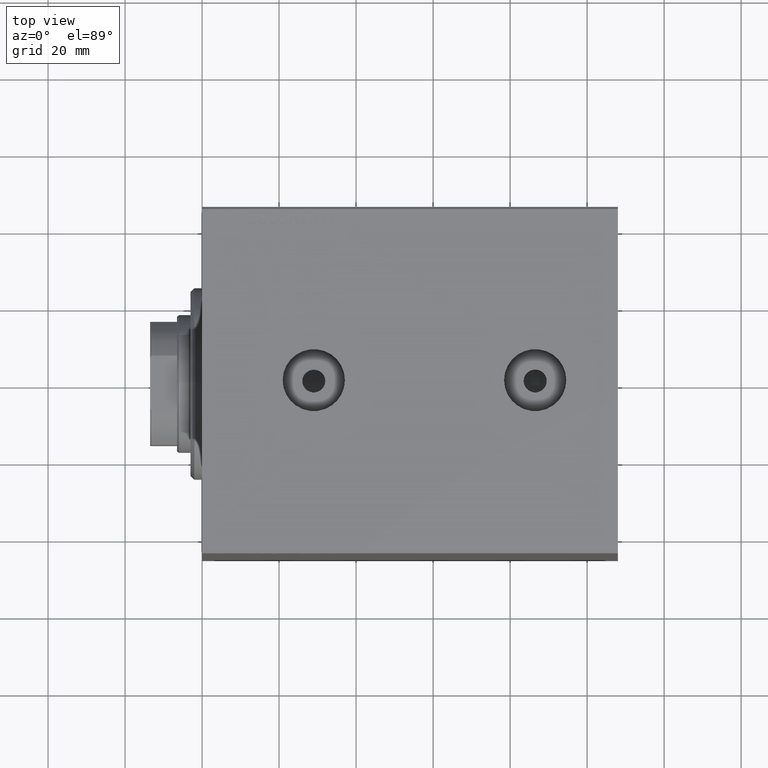
[diagram: clean part render]
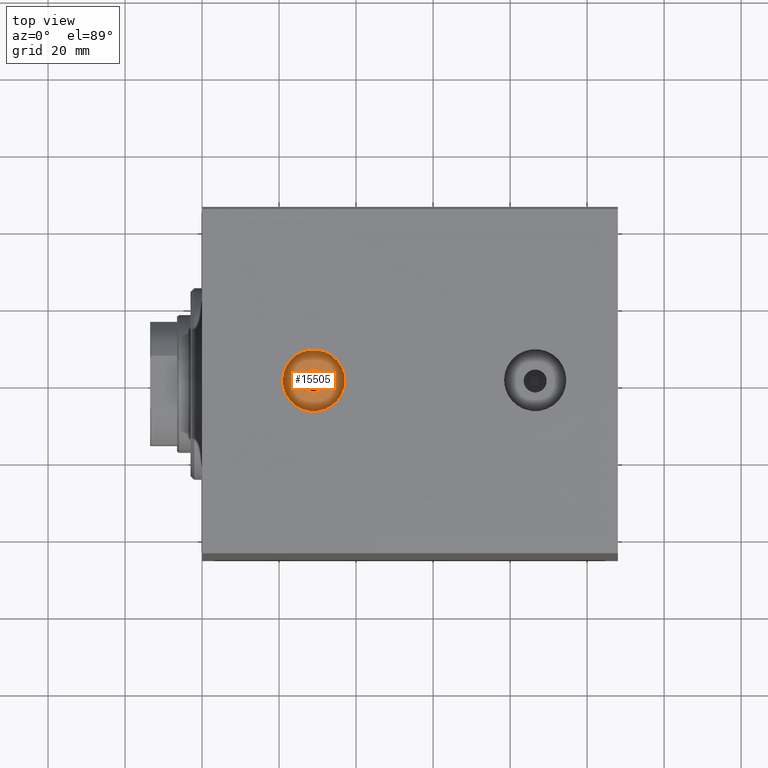
[diagram: same view with one face highlighted and labeled with its STEP entity id]
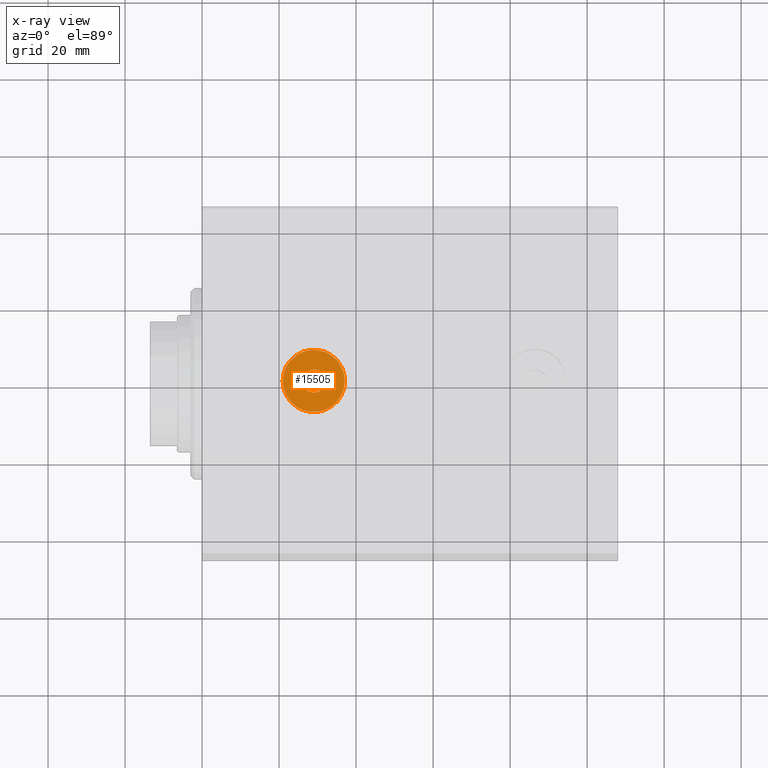
[diagram: x-ray of the same camera — body ghosted, the highlighted face saturated]
A machine part, top view. The second image highlights one B-rep face of the part: STEP entity #15505.
The next image is the same camera in x-ray: the body ghosted, the highlighted face saturated — about 0% of this face is hidden behind the body in this view.
In plain terms, the highlighted planar face has unit normal (0, 0, 1).
Its self-contained STEP definition (entity closure, byte-faithful):
#2178 = CARTESIAN_POINT ( 'NONE',  ( 29.00000000000000000, -8.866364432770346144E-15, 44.24000000000000199 ) ) ;
#3608 = ORIENTED_EDGE ( 'NONE', *, *, #31052, .T. ) ;
#4148 = DIRECTION ( 'NONE',  ( 0.000000000000000000, 0.000000000000000000, 1.000000000000000000 ) ) ;
#4226 = AXIS2_PLACEMENT_3D ( 'NONE', #2178, #19435, #8230 ) ;
#4466 = PLANE ( 'NONE',  #20686 ) ;
#5433 = ORIENTED_EDGE ( 'NONE', *, *, #37851, .T. ) ;
#8230 = DIRECTION ( 'NONE',  ( 1.000000000000000000, 0.000000000000000000, 0.000000000000000000 ) ) ;
#9689 = ORIENTED_EDGE ( 'NONE', *, *, #25907, .F. ) ;
#11805 = DIRECTION ( 'NONE',  ( 0.000000000000000000, 0.000000000000000000, 1.000000000000000000 ) ) ;
#12133 = CARTESIAN_POINT ( 'NONE',  ( 37.08500000000000085, -8.866364432770346144E-15, 44.24000000000000199 ) ) ;
#13897 = FACE_BOUND ( 'NONE', #29492, .T. ) ;
#15040 = AXIS2_PLACEMENT_3D ( 'NONE', #23343, #19534, #26715 ) ;
#15505 = ADVANCED_FACE ( 'NONE', ( #13897, #20620 ), #4466, .T. ) ;
#16244 = ORIENTED_EDGE ( 'NONE', *, *, #23937, .F. ) ;
#16690 = VERTEX_POINT ( 'NONE', #44314 ) ;
#16963 = EDGE_LOOP ( 'NONE', ( #5433, #3608 ) ) ;
#18050 = CARTESIAN_POINT ( 'NONE',  ( 29.00000000000000000, -8.866364432770346144E-15, 44.24000000000000199 ) ) ;
#18528 = CIRCLE ( 'NONE', #44270, 2.999999999999999112 ) ;
#19435 = DIRECTION ( 'NONE',  ( 0.000000000000000000, 0.000000000000000000, 1.000000000000000000 ) ) ;
#19534 = DIRECTION ( 'NONE',  ( 0.000000000000000000, 0.000000000000000000, 1.000000000000000000 ) ) ;
#20620 = FACE_OUTER_BOUND ( 'NONE', #16963, .T. ) ;
#20686 = AXIS2_PLACEMENT_3D ( 'NONE', #27372, #30940, #41437 ) ;
#21248 = VERTEX_POINT ( 'NONE', #37824 ) ;
#23343 = CARTESIAN_POINT ( 'NONE',  ( 29.00000000000000000, -8.866364432770346144E-15, 44.24000000000000199 ) ) ;
#23571 = CIRCLE ( 'NONE', #4226, 2.999999999999999112 ) ;
#23937 = EDGE_CURVE ( 'NONE', #16690, #21248, #18528, .T. ) ;
#25907 = EDGE_CURVE ( 'NONE', #21248, #16690, #23571, .T. ) ;
#26715 = DIRECTION ( 'NONE',  ( 1.000000000000000000, 0.000000000000000000, 0.000000000000000000 ) ) ;
#27372 = CARTESIAN_POINT ( 'NONE',  ( 29.00000000000000000, -8.866364432770346144E-15, 44.24000000000000199 ) ) ;
#28713 = CARTESIAN_POINT ( 'NONE',  ( 20.91500000000000270, -7.876237495659713355E-15, 44.24000000000000199 ) ) ;
#29492 = EDGE_LOOP ( 'NONE', ( #16244, #9689 ) ) ;
#30940 = DIRECTION ( 'NONE',  ( 0.000000000000000000, 0.000000000000000000, 1.000000000000000000 ) ) ;
#30956 = CIRCLE ( 'NONE', #43820, 8.084999999999999076 ) ;
#31052 = EDGE_CURVE ( 'NONE', #39534, #34032, #36490, .T. ) ;
#34032 = VERTEX_POINT ( 'NONE', #12133 ) ;
#35116 = DIRECTION ( 'NONE',  ( 1.000000000000000000, 0.000000000000000000, 0.000000000000000000 ) ) ;
#36490 = CIRCLE ( 'NONE', #15040, 8.084999999999999076 ) ;
#37824 = CARTESIAN_POINT ( 'NONE',  ( 26.00000000000000355, -8.498970393026142278E-15, 44.24000000000000199 ) ) ;
#37851 = EDGE_CURVE ( 'NONE', #34032, #39534, #30956, .T. ) ;
#38210 = DIRECTION ( 'NONE',  ( 1.000000000000000000, 0.000000000000000000, 0.000000000000000000 ) ) ;
#39534 = VERTEX_POINT ( 'NONE', #28713 ) ;
#41437 = DIRECTION ( 'NONE',  ( 1.000000000000000000, 0.000000000000000000, -0.000000000000000000 ) ) ;
#42504 = CARTESIAN_POINT ( 'NONE',  ( 29.00000000000000000, -8.866364432770346144E-15, 44.24000000000000199 ) ) ;
#43820 = AXIS2_PLACEMENT_3D ( 'NONE', #42504, #11805, #35116 ) ;
#44270 = AXIS2_PLACEMENT_3D ( 'NONE', #18050, #4148, #38210 ) ;
#44314 = CARTESIAN_POINT ( 'NONE',  ( 32.00000000000000000, -8.866364432770346144E-15, 44.24000000000000199 ) ) ;